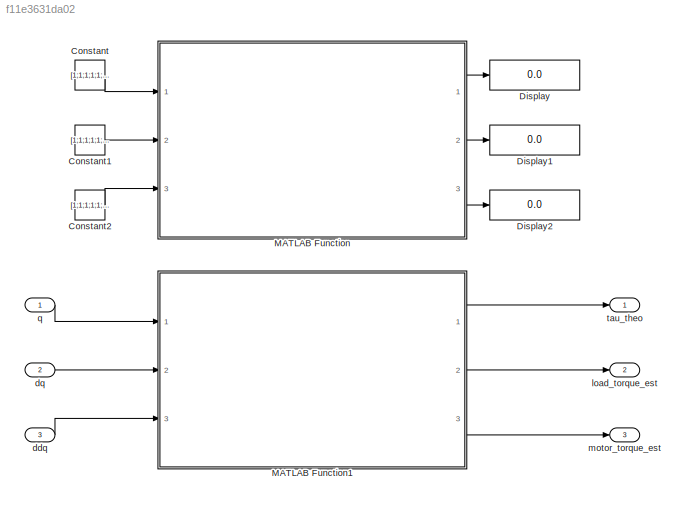
MODEL slx_f11e3631da02
KIND model
CONFIG AbsTol = auto
CONFIG EnableMultiTasking = off
CONFIG FixedStep = auto
CONFIG MaxStep = auto
CONFIG MinStep = auto
CONFIG RelTol = 1e-3
CONFIG SampleTimeConstraint = Unconstrained
CONFIG SolverName = VariableStepAuto
CONFIG StartTime = 0.0
CONFIG StopTime = 10.0
BLOCK [Constant] Constant
  Commented = on
  Value = [1;1;1;1;1;1]
BLOCK [Constant] Constant1
  Commented = on
  Value = [1;1;1;1;1;1]*0
BLOCK [Constant] Constant2
  Commented = on
  Value = [1;1;1;1;1;1]*0
BLOCK [Display] Display
  Commented = on
  Decimation = 1
  Ports = [1]
BLOCK [Display] Display1
  Commented = on
  Decimation = 1
  Ports = [1]
BLOCK [Display] Display2
  Commented = on
  Decimation = 1
  Ports = [1]
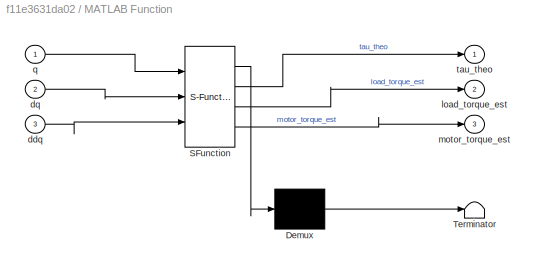
BLOCK [SubSystem] MATLAB Function
  Commented = on
  ErrorFcn = Stateflow.Translate.translate
  PermitHierarchicalResolution = ExplicitOnly
  Ports = [3, 3]
  RequestExecContextInheritance = off
  SFBlockType = MATLAB Function
  TreatAsAtomicUnit = on
BLOCK [Demux] MATLAB Function/ Demux 
  Outputs = 1
  Ports = [1, 1]
BLOCK [S-Function] MATLAB Function/ SFunction 
  EnableBusSupport = on
  FunctionName = sf_sfun
  PortCounts = [3 4]
  Ports = [3, 4]
  SFcnIsStateOwnerBlock = off
  SFunctionDeploymentMode = off
  Tag = Stateflow S-Function 2
BLOCK [Terminator] MATLAB Function/ Terminator 
BLOCK [Inport] MATLAB Function/ddq
  Port = 3
BLOCK [Inport] MATLAB Function/dq
  Port = 2
BLOCK [Outport] MATLAB Function/load_torque_est
  Port = 2
BLOCK [Outport] MATLAB Function/motor_torque_est
  Port = 3
BLOCK [Inport] MATLAB Function/q
BLOCK [Outport] MATLAB Function/tau_theo
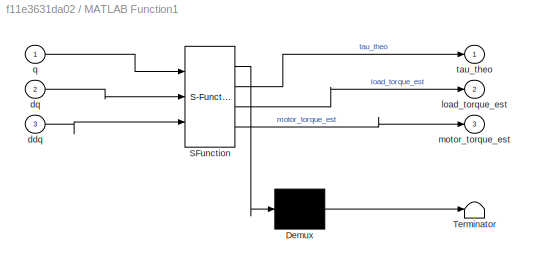
BLOCK [SubSystem] MATLAB Function1
  ErrorFcn = Stateflow.Translate.translate
  PermitHierarchicalResolution = ExplicitOnly
  Ports = [3, 3]
  RequestExecContextInheritance = off
  SFBlockType = MATLAB Function
  TreatAsAtomicUnit = on
BLOCK [Demux] MATLAB Function1/ Demux 
  Outputs = 1
  Ports = [1, 1]
BLOCK [S-Function] MATLAB Function1/ SFunction 
  EnableBusSupport = on
  FunctionName = sf_sfun
  PortCounts = [3 4]
  Ports = [3, 4]
  SFcnIsStateOwnerBlock = off
  SFunctionDeploymentMode = off
  Tag = Stateflow S-Function 1
BLOCK [Terminator] MATLAB Function1/ Terminator 
BLOCK [Inport] MATLAB Function1/ddq
  Port = 3
BLOCK [Inport] MATLAB Function1/dq
  Port = 2
BLOCK [Outport] MATLAB Function1/load_torque_est
  Port = 2
BLOCK [Outport] MATLAB Function1/motor_torque_est
  Port = 3
BLOCK [Inport] MATLAB Function1/q
BLOCK [Outport] MATLAB Function1/tau_theo
BLOCK [Inport] ddq
  Port = 3
BLOCK [Inport] dq
  Port = 2
BLOCK [Outport] load_torque_est
  Port = 2
BLOCK [Outport] motor_torque_est
  Port = 3
BLOCK [Inport] q
BLOCK [Outport] tau_theo
LINE Constant1:1 -> MATLAB Function:2
LINE Constant2:1 -> MATLAB Function:3
LINE Constant:1 -> MATLAB Function:1
LINE MATLAB Function1:1 -> tau_theo:1
LINE MATLAB Function1:2 -> load_torque_est:1
LINE MATLAB Function1:3 -> motor_torque_est:1
LINE MATLAB Function:1 -> Display:1
LINE MATLAB Function:2 -> Display1:1
LINE MATLAB Function:3 -> Display2:1
LINE ddq:1 -> MATLAB Function1:3
LINE dq:1 -> MATLAB Function1:2
LINE q:1 -> MATLAB Function1:1
CHART MATLAB Function1 states=1 transitions=1
  STATE_LABEL 'eML_blk_kernel()'
  STATE_LABEL 'SCRIPT:\nfunction [tau_theo,load_torque_est,motor_torque_est] = tor_compute(q,dq,ddq)\n%#codegen\n% 输入参数: 关节角度q: 6xn; 关节角速度q: 6xn; 关节角加速度q: 6xn;\n% 输出参数: 理论计算力矩tau_theo: 6xn; 辨识参数估计负载力矩load_torque_est: 6xn; 辨识参数估计电机力矩motor_torque_est: 6xn;\nn = size(q,2); % n为轨迹点数\nm = size(q,1); % m为自由度个数\n%% 名义动力学模型 理论力矩估计\n%名义动力学参数设置\ng = 9.81; %重力加速度g\n%改进DH参数\nalpha=[0;pi/2;0;0;pi/2;-pi/2];    \na=[0;0;-0.264;-0.237;0;0]...<+3608ch>'
CHART MATLAB Function states=1 transitions=1
  STATE_LABEL 'eML_blk_kernel()'
  STATE_LABEL 'SCRIPT:\nfunction [tau_theo,load_torque_est,motor_torque_est] = tor_compute(q,dq,ddq)\n%#codegen\n% 输入参数: 关节角度q: 6xn; 关节角速度q: 6xn; 关节角加速度q: 6xn;\n% 输出参数: 理论计算力矩tau_theo: 6xn; 辨识参数估计负载力矩load_torque_est: 6xn; 辨识参数估计电机力矩motor_torque_est: 6xn;\nn = size(q,2); % n为轨迹点数\nm = size(q,1); % m为自由度个数\n%% 名义动力学模型 理论力矩估计\n%名义动力学参数设置\ng = 9.81; %重力加速度g\n%改进DH参数\nalpha=[0;pi/2;0;0;pi/2;-pi/2];    \na=[0;0;-0.264;-0.237;0;0]...<+3608ch>'
CHART  states=0 transitions=0
CHART  states=0 transitions=0
